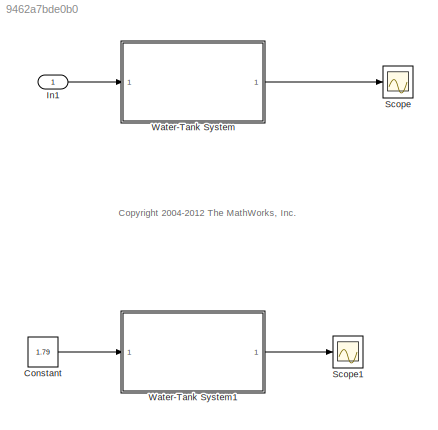
MODEL slx_9462a7bde0b0
KIND model
CONFIG AbsTol = auto
CONFIG EnableMultiTasking = on
CONFIG FixedStep = auto
CONFIG MaxStep = auto
CONFIG MinStep = auto
CONFIG PreLoadFcn = watertankdat
CONFIG RelTol = 1e-3
CONFIG SampleTimeConstraint = Unconstrained
CONFIG Solver = ode45
CONFIG SolverName = ode45
CONFIG StartTime = 0.0
CONFIG StopTime = 800
BLOCK [Constant] Constant
  Value = 1.79
BLOCK [Inport] In1
  IconDisplay = Port number
BLOCK [Scope] Scope
  NumInputPorts = 1
  Ports = [1]
  ScopeSpecificationString = Simulink.scopes.TimeScopeBlockCfg('CurrentConfiguration', extmgr.ConfigurationSet(extmgr.Configuration('Core','General UI',true),extmgr.Configuration('Core','Source UI',true),extmgr.Configuration('Sources','WiredSimulink',true,'DataLoggingSaveFormat','StructureWithTime','DataLoggingLimitDataPoints',true,'DataLoggingDecimation','1','DataLoggingDecimateData',true),extmgr.Configuration('Visuals','Tim...<+1656ch>
BLOCK [Scope] Scope1
  NumInputPorts = 1
  Ports = [1]
  ScopeSpecificationString = Simulink.scopes.TimeScopeBlockCfg('CurrentConfiguration', extmgr.ConfigurationSet(extmgr.Configuration('Core','General UI',true),extmgr.Configuration('Core','Source UI',true),extmgr.Configuration('Sources','WiredSimulink',true,'DataLoggingVariableName','ScopeData1'),extmgr.Configuration('Visuals','Time Domain',true,'SerializedDisplays',{struct('MinYLimReal','-1.37797','MaxYLimReal','22.40172','YLa...<+1775ch>
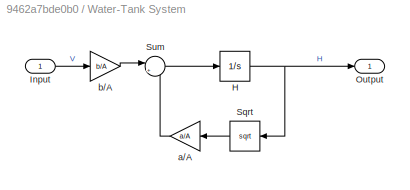
BLOCK [SubSystem] Water-Tank System
  Ports = [1, 1]
  RequestExecContextInheritance = off
  Variant = off
BLOCK [Integrator] Water-Tank System/H
  InitialCondition = 1
  LimitOutput = on
  LowerSaturationLimit = 0
  Ports = [1, 1]
BLOCK [Inport] Water-Tank System/Input
  IconDisplay = Port number
BLOCK [Outport] Water-Tank System/Output
  IconDisplay = Port number
BLOCK [Sqrt] Water-Tank System/Sqrt
  OutputSignalType = real
BLOCK [Sum] Water-Tank System/Sum
  IconShape = round
  InputSameDT = off
  Inputs = |+-
  OutDataTypeStr = Inherit: Inherit via internal rule
  Ports = [2, 1]
BLOCK [Gain] Water-Tank System/a//A
  Gain = a/A
BLOCK [Gain] Water-Tank System/b//A
  Gain = b/A
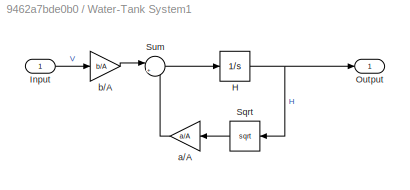
BLOCK [SubSystem] Water-Tank System1
  Ports = [1, 1]
  RequestExecContextInheritance = off
  Variant = off
BLOCK [Integrator] Water-Tank System1/H
  InitialCondition = 1
  LimitOutput = on
  LowerSaturationLimit = 0
  Ports = [1, 1]
BLOCK [Inport] Water-Tank System1/Input
  IconDisplay = Port number
BLOCK [Outport] Water-Tank System1/Output
  IconDisplay = Port number
BLOCK [Sqrt] Water-Tank System1/Sqrt
  OutputSignalType = real
BLOCK [Sum] Water-Tank System1/Sum
  IconShape = round
  InputSameDT = off
  Inputs = |+-
  OutDataTypeStr = Inherit: Inherit via internal rule
  Ports = [2, 1]
BLOCK [Gain] Water-Tank System1/a//A
  Gain = a/A
BLOCK [Gain] Water-Tank System1/b//A
  Gain = b/A
ANNOTATION (root): <copyright redacted>
LINE Constant:1 -> Water-Tank System1:1
LINE In1:1 -> Water-Tank System:1
NET Water-Tank System/H:1 -> Water-Tank System/Output:1, Water-Tank System/Sqrt:1
LINE Water-Tank System/Input:1 -> Water-Tank System/b//A:1
LINE Water-Tank System/Sqrt:1 -> Water-Tank System/a//A:1
LINE Water-Tank System/Sum:1 -> Water-Tank System/H:1
LINE Water-Tank System/a//A:1 -> Water-Tank System/Sum:2
LINE Water-Tank System/b//A:1 -> Water-Tank System/Sum:1
NET Water-Tank System1/H:1 -> Water-Tank System1/Output:1, Water-Tank System1/Sqrt:1
LINE Water-Tank System1/Input:1 -> Water-Tank System1/b//A:1
LINE Water-Tank System1/Sqrt:1 -> Water-Tank System1/a//A:1
LINE Water-Tank System1/Sum:1 -> Water-Tank System1/H:1
LINE Water-Tank System1/a//A:1 -> Water-Tank System1/Sum:2
LINE Water-Tank System1/b//A:1 -> Water-Tank System1/Sum:1
LINE Water-Tank System1:1 -> Scope1:1
LINE Water-Tank System:1 -> Scope:1
note: NET lines group one-source signal fan-out (src -> all destinations, sorted); 1:1 wires keep LINE
